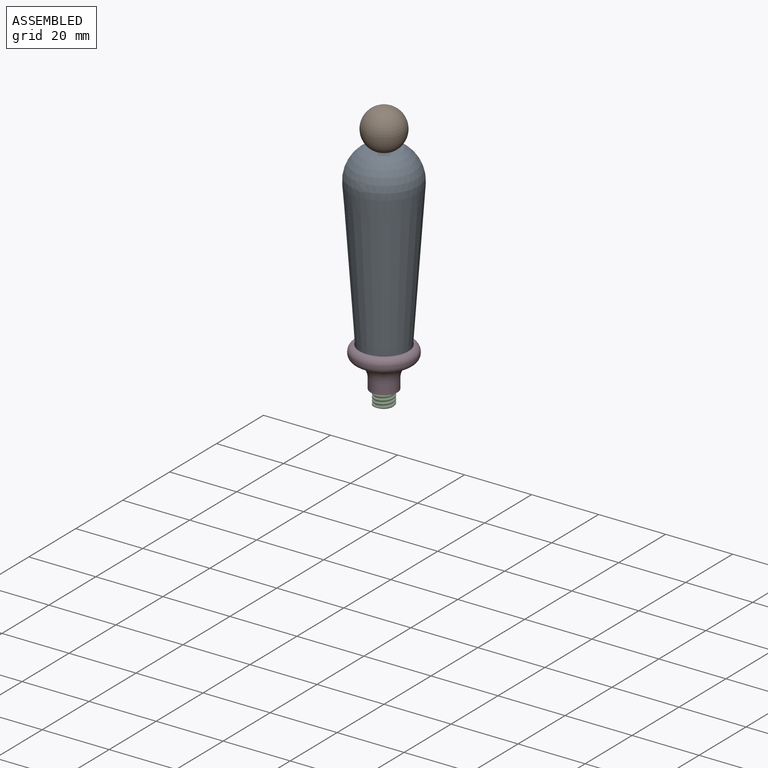
[diagram: assembled view]
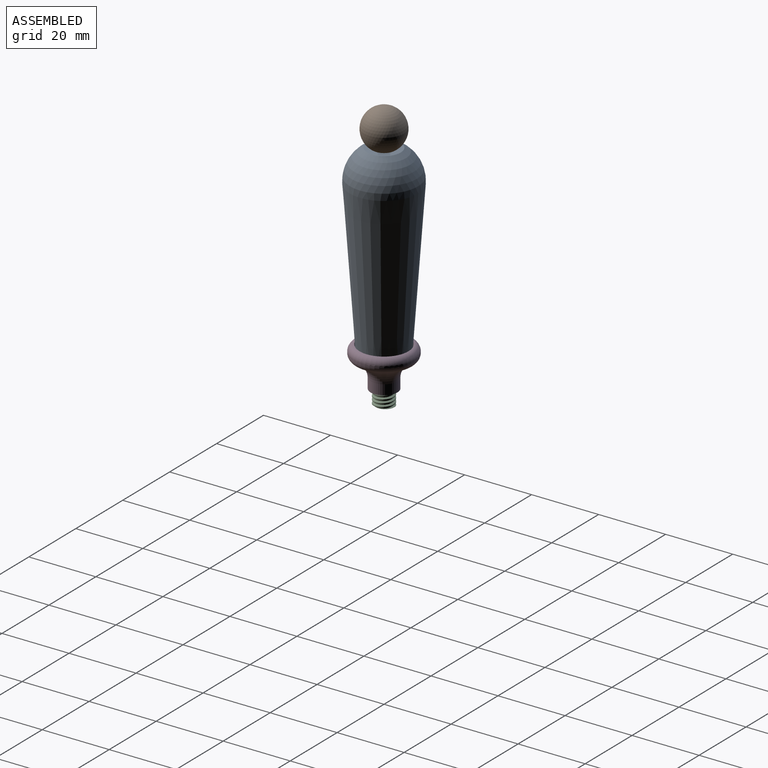
[diagram: assembled view, second angle]
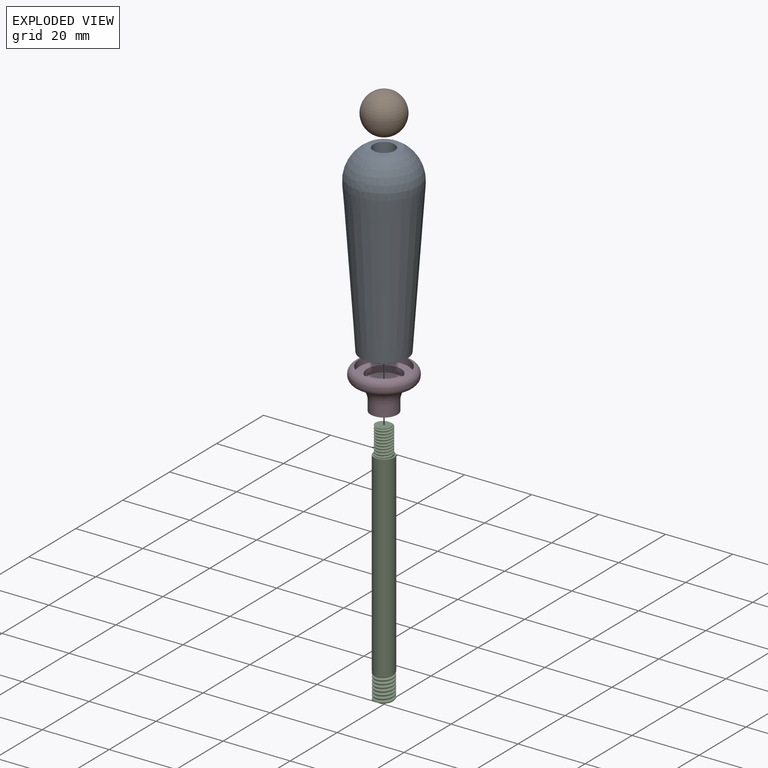
[diagram: exploded view]
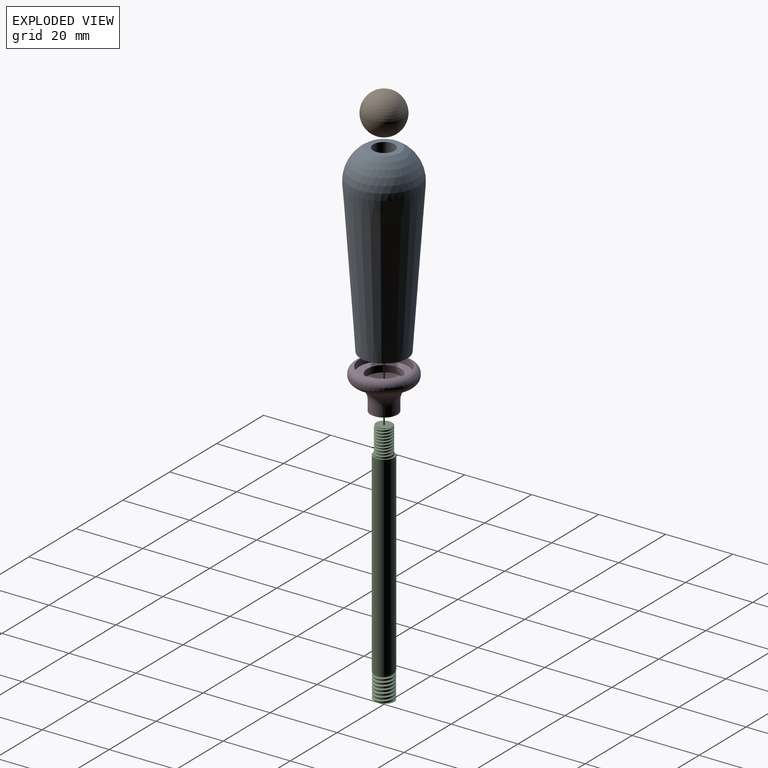
[diagram: exploded view, second angle]
ASSEMBLY  parts=4 mates=3
PART A: 5 faces, bbox 20.5x20.5x55 mm
  f0: plane 14x14mm, normal (0,0,-1), area 121.8mm2, adj f1,f4
  f1: cone r=7mm half-angle=4.1deg, axis (0,0,1), area 2458.8mm2, adj f0,f2
  f2: sphere r=10.25mm, area 623.1mm2, adj f1,f3
  f3: plane 10x10mm, normal (0,0,1), area 46.4mm2, adj f2,f4
  f4: cylinder r=3.2mm len=55mm, axis (0,0,-1), area 1105.8mm2, adj f0,f3
PART B: 8 faces, bbox 12.2x11.8x12.2 mm
  f0: cone r=0mm half-angle=59deg, axis (0,-1,0), area 14.7mm2, adj f1
  f1: cylinder r=2mm len=9mm, axis (0,-1,0), area 34mm2, adj f0,f2,f4,f6,f7
  f2: plane 6.21x6.21mm, normal (0,-1,0), area 12.7mm2, adj f1,f3,f5,f6,f7
  f3: sphere r=6mm, area 422.2mm2, adj f2
  f4: plane 0.64x0.42mm, normal (1,0,0), area 0.2mm2, adj f1,f5,f6,f7
  f5: cylinder r=2.42mm len=8.76mm, axis (0,1,0), area 20.5mm2, adj f2,f4,f6,f7
  f6: bspline ~9.04x5.59mm, area 71.5mm2, adj f1,f2,f4,f5
  f7: bspline ~9.31x5.59mm, area 74.9mm2, adj f1,f2,f4,f5
PART C: 15 faces, bbox 6.2x7.1x75.1 mm
  f0: plane 4.82x4.8mm, normal (0,0,1), area 16.7mm2, adj f4,f12,f13,f14
  f1: cylinder r=2.98mm len=8mm, axis (0,0,1), area 49.7mm2, adj f3,f6,f7,f9,f10
  f2: cylinder r=3mm len=58mm, axis (0,0,-1), area 1093.3mm2, adj f3,f5
  f3: plane 6x6mm, normal (0,0,-1), area 0.5mm2, adj f1,f2
  f4: cylinder r=2.5mm len=8mm, axis (0,0,1), area 33.5mm2, adj f0,f5,f11,f12,f13
  f5: plane 6x6mm, normal (0,0,1), area 8.6mm2, adj f2,f4
  f6: plane 5.72x5.7mm, normal (0,0,-1), area 23.4mm2, adj f1,f8,f9,f10
  f7: plane 0.79x0.5mm, normal (0,-1,0), area 0.3mm2, adj f1,f8,f9,f10
  f8: cylinder r=2.48mm len=7.71mm, axis (0,0,1), area 37.7mm2, adj f6,f7,f9,f10
  f9: bspline ~8.29x6.87mm, area 78.1mm2, adj f1,f6,f7,f8
  f10: bspline ~7.96x6.87mm, area 73.1mm2, adj f1,f6,f7,f8
  f11: plane 0.63x0.4mm, normal (0,1,0), area 0.2mm2, adj f4,f12,f13,f14
  f12: bspline ~8.23x5.77mm, area 65.8mm2, adj f0,f4,f11,f14
  f13: bspline ~7.96x5.77mm, area 62.4mm2, adj f0,f4,f11,f14
  f14: cylinder r=2.1mm len=7.77mm, axis (0,0,-1), area 20.3mm2, adj f0,f11,f12,f13
PART D: 11 faces, bbox 19.5x19.5x12 mm
  f0: torus R=9mm, axis (0,0,-1), area 211.7mm2, adj f1,f10
  f1: torus R=7mm, axis (0,0,-1), area 136.8mm2, adj f0,f2
  f2: cylinder r=9mm len=18mm, axis (0,0,-1), area 17.8mm2, adj f1,f3
  f3: torus R=7mm, axis (0,0,-1), area 149.8mm2, adj f2,f4
  f4: cylinder r=7.3mm len=14.6mm, axis (0,0,-1), area 91.7mm2, adj f3,f5
  f5: plane 14.6x14.6mm, normal (0,0,1), area 88.9mm2, adj f4,f6
  f6: cylinder r=5mm len=10mm, axis (0,0,-1), area 62.8mm2, adj f5,f7
  f7: cone r=5mm half-angle=59deg, axis (0,0,1), area 56.4mm2, adj f6,f8
  f8: cylinder r=3.1mm len=6.86mm, axis (0,0,-1), area 133.6mm2, adj f7,f9
  f9: plane 8x8mm, normal (0,0,-1), area 20.1mm2, adj f8,f10
  f10: cylinder r=4mm len=8mm, axis (0,0,-1), area 75.4mm2, adj f0,f9
PLACE A rot(axis=(0,0,1),90deg) t=(0,0,10)mm
PLACE B rot(axis=(0.58,0.58,0.58),120deg) t=(0,0,70.05)mm
PLACE C rot(axis=(0,0,1),180deg) t=(0,0,3.64)mm
PLACE D rot(axis=(0,0,1),90deg) t=(0,0,0)mm
MATE fastened C.f2 <-> B.f0  axis (0,0,1) through (0,0,61.64)mm
MATE fastened D.f0 <-> A.f1  axis (0,0,1) through (0,0,10)mm
MATE fastened B.f0 <-> A.f1  axis (0,0,-1) through (0,0,64.85)mm
